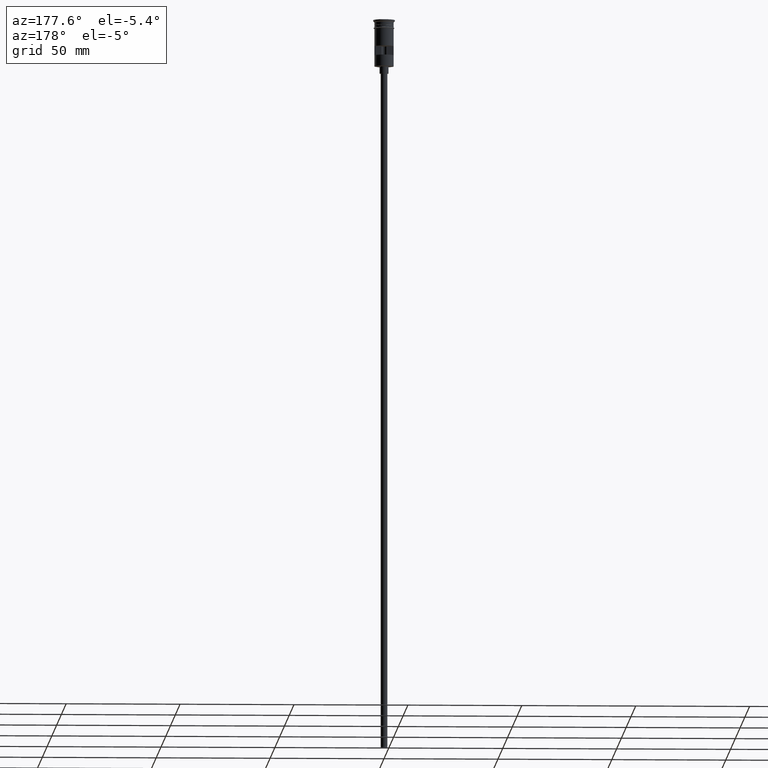
[diagram: clean part render]
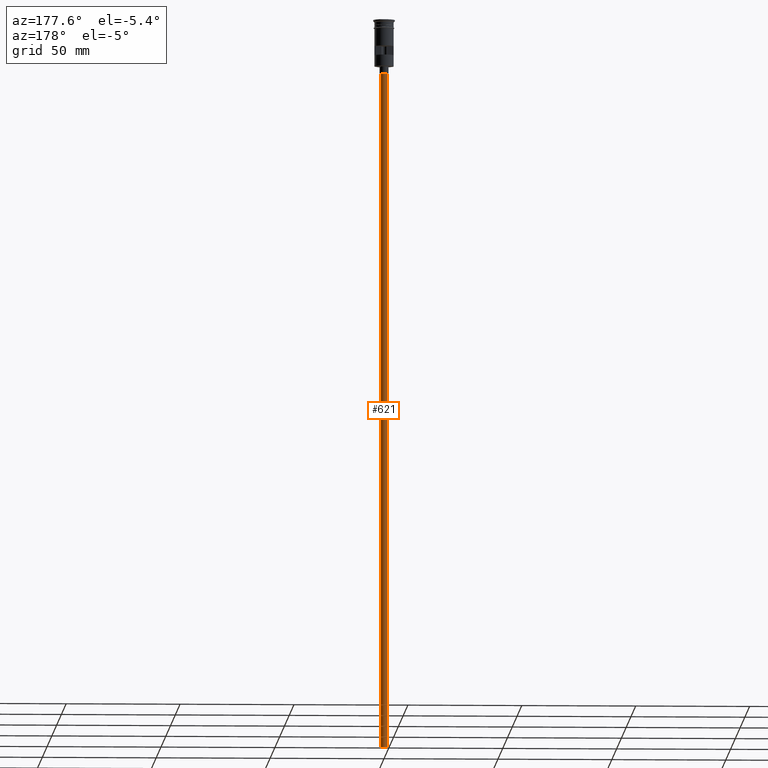
[diagram: same view with one face highlighted and labeled with its STEP entity id]
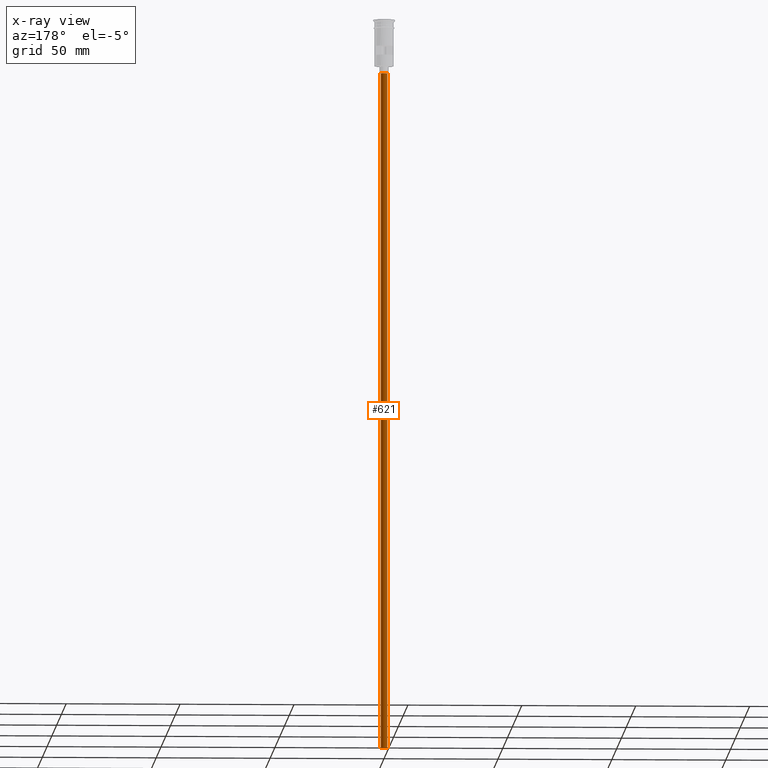
[diagram: x-ray of the same camera — body ghosted, the highlighted face saturated]
A machine part, auxiliary view. The second image highlights one B-rep face of the part: STEP entity #621.
The next image is the same camera in x-ray: the body ghosted, the highlighted face saturated — about 0% of this face is hidden behind the body in this view.
In plain terms, the highlighted cylindrical surface (edge-blend (fillet) strip) has radius 1.5 mm, axis along (-0, -0, 1).
Its self-contained STEP definition (entity closure, byte-faithful):
#10 = AXIS2_PLACEMENT_3D ( 'NONE', #1460, #957, #219 ) ;
#62 = CIRCLE ( 'NONE', #10, 1.500000000000000222 ) ;
#123 = CARTESIAN_POINT ( 'NONE',  ( 0.000000000000000000, 0.000000000000000000, -320.5000000000000000 ) ) ;
#190 = DIRECTION ( 'NONE',  ( -0.000000000000000000, -0.000000000000000000, 1.000000000000000000 ) ) ;
#219 = DIRECTION ( 'NONE',  ( -1.000000000000000000, 0.000000000000000000, 0.000000000000000000 ) ) ;
#230 = AXIS2_PLACEMENT_3D ( 'NONE', #123, #1600, #1482 ) ;
#280 = EDGE_CURVE ( 'NONE', #1414, #832, #306, .T. ) ;
#300 = CIRCLE ( 'NONE', #230, 1.500000000000000222 ) ;
#306 = LINE ( 'NONE', #804, #815 ) ;
#527 = VECTOR ( 'NONE', #1343, 1000.000000000000000 ) ;
#545 = CARTESIAN_POINT ( 'NONE',  ( 0.000000000000000000, 0.000000000000000000, -320.5000000000000000 ) ) ;
#560 = EDGE_LOOP ( 'NONE', ( #1404, #685, #758, #1495 ) ) ;
#566 = CYLINDRICAL_SURFACE ( 'NONE', #738, 1.500000000000000222 ) ;
#596 = CARTESIAN_POINT ( 'NONE',  ( -1.500000000000000222, 1.836970198721030181E-16, -23.49999999999999645 ) ) ;
#621 = ADVANCED_FACE ( 'NONE', ( #936 ), #566, .T. ) ;
#626 = CARTESIAN_POINT ( 'NONE',  ( 1.500000000000000222, 0.000000000000000000, -320.5000000000000000 ) ) ;
#685 = ORIENTED_EDGE ( 'NONE', *, *, #1486, .T. ) ;
#733 = LINE ( 'NONE', #1097, #527 ) ;
#738 = AXIS2_PLACEMENT_3D ( 'NONE', #545, #1530, #910 ) ;
#758 = ORIENTED_EDGE ( 'NONE', *, *, #1364, .T. ) ;
#804 = CARTESIAN_POINT ( 'NONE',  ( 1.500000000000000222, 0.000000000000000000, -320.5000000000000000 ) ) ;
#815 = VECTOR ( 'NONE', #190, 1000.000000000000000 ) ;
#832 = VERTEX_POINT ( 'NONE', #1106 ) ;
#910 = DIRECTION ( 'NONE',  ( 1.000000000000000000, 0.000000000000000000, 0.000000000000000000 ) ) ;
#936 = FACE_OUTER_BOUND ( 'NONE', #560, .T. ) ;
#957 = DIRECTION ( 'NONE',  ( 0.000000000000000000, 0.000000000000000000, -1.000000000000000000 ) ) ;
#1004 = VERTEX_POINT ( 'NONE', #596 ) ;
#1097 = CARTESIAN_POINT ( 'NONE',  ( -1.500000000000000222, 1.836970198721030181E-16, -320.5000000000000000 ) ) ;
#1106 = CARTESIAN_POINT ( 'NONE',  ( 1.500000000000000222, 0.000000000000000000, -23.49999999999999645 ) ) ;
#1121 = VERTEX_POINT ( 'NONE', #1279 ) ;
#1279 = CARTESIAN_POINT ( 'NONE',  ( -1.500000000000000222, 1.836970198721030181E-16, -320.5000000000000000 ) ) ;
#1343 = DIRECTION ( 'NONE',  ( -0.000000000000000000, -0.000000000000000000, 1.000000000000000000 ) ) ;
#1364 = EDGE_CURVE ( 'NONE', #1004, #832, #62, .T. ) ;
#1404 = ORIENTED_EDGE ( 'NONE', *, *, #1471, .F. ) ;
#1414 = VERTEX_POINT ( 'NONE', #626 ) ;
#1460 = CARTESIAN_POINT ( 'NONE',  ( 0.000000000000000000, 0.000000000000000000, -23.49999999999999645 ) ) ;
#1471 = EDGE_CURVE ( 'NONE', #1121, #1414, #300, .T. ) ;
#1482 = DIRECTION ( 'NONE',  ( -1.000000000000000000, 0.000000000000000000, 0.000000000000000000 ) ) ;
#1486 = EDGE_CURVE ( 'NONE', #1121, #1004, #733, .T. ) ;
#1495 = ORIENTED_EDGE ( 'NONE', *, *, #280, .F. ) ;
#1530 = DIRECTION ( 'NONE',  ( -0.000000000000000000, -0.000000000000000000, 1.000000000000000000 ) ) ;
#1600 = DIRECTION ( 'NONE',  ( 0.000000000000000000, 0.000000000000000000, -1.000000000000000000 ) ) ;